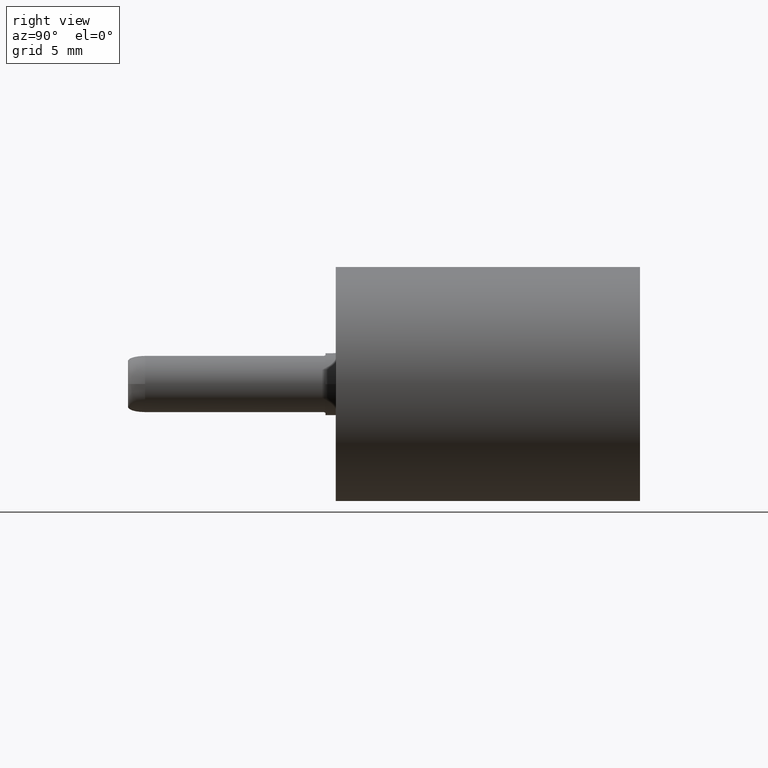
[diagram: clean part render]
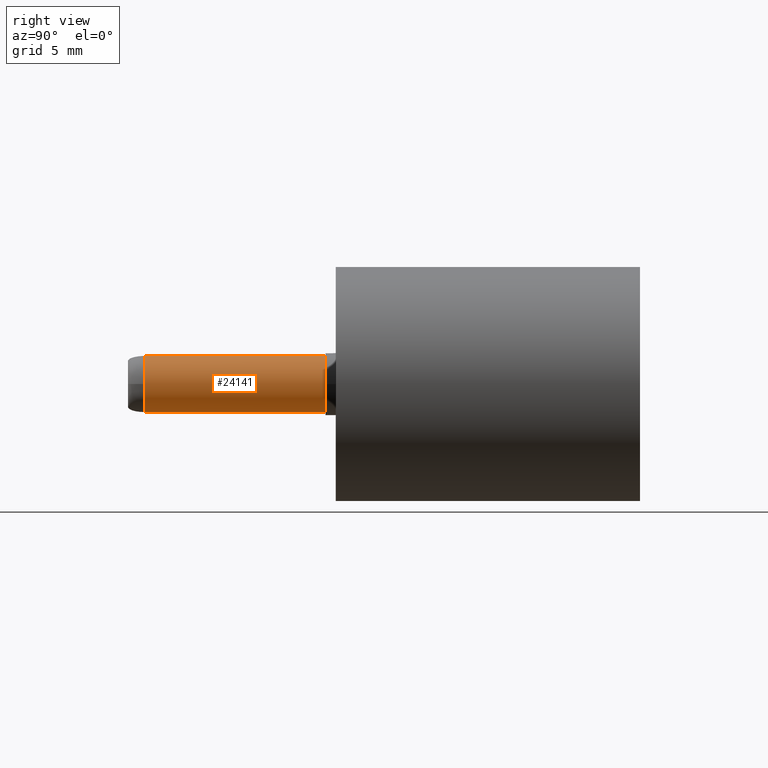
[diagram: same view with one face highlighted and labeled with its STEP entity id]
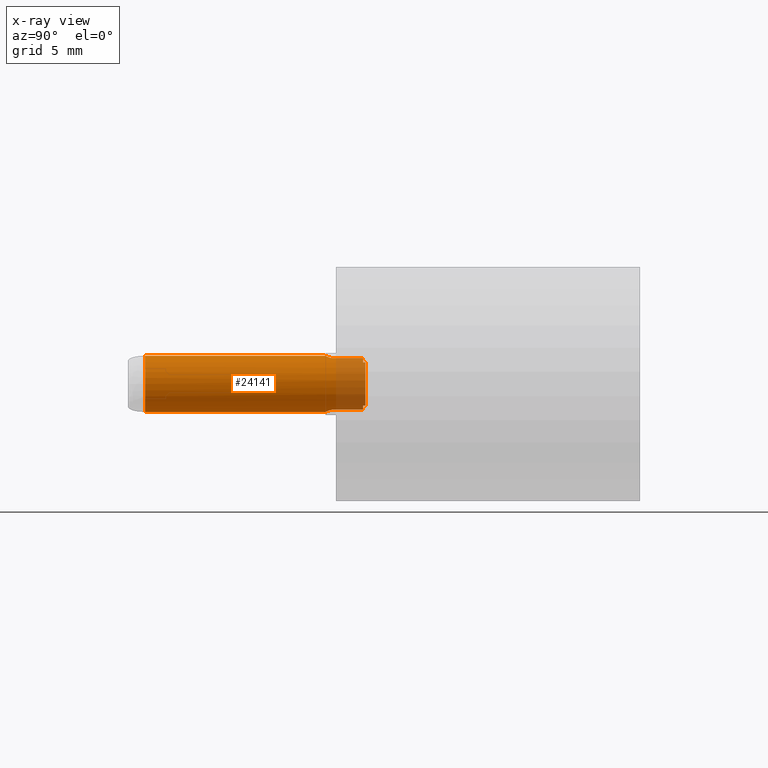
[diagram: x-ray of the same camera — body ghosted, the highlighted face saturated]
A machine part, right view. The second image highlights one B-rep face of the part: STEP entity #24141.
The next image is the same camera in x-ray: the body ghosted, the highlighted face saturated — about 12% of this face is hidden behind the body in this view.
In plain terms, the highlighted cylindrical surface (edge-blend (fillet) strip) has radius 1.2 mm, axis along (0, -1, -0).
Its self-contained STEP definition (entity closure, byte-faithful):
#407=B_SPLINE_CURVE_WITH_KNOTS('',3,(#37984,#37985,#37986,#37987,#37988,
#37989,#37990,#37991,#37992,#37993,#37994,#37995,#37996,#37997),
 .UNSPECIFIED.,.F.,.F.,(4,2,2,2,2,2,4),(1.94104514190108E-9,0.0025253140910005,
0.00510140194742618,0.00920702891639948,0.0163959121293532,0.024338370428822,
0.0331736761186564),.UNSPECIFIED.);
#412=B_SPLINE_CURVE_WITH_KNOTS('',3,(#38093,#38094,#38095,#38096,#38097,
#38098),.UNSPECIFIED.,.F.,.F.,(4,2,4),(-0.0266509401409967,-0.0125554705266207,
0.),.UNSPECIFIED.);
#414=B_SPLINE_CURVE_WITH_KNOTS('',3,(#38229,#38230,#38231,#38232,#38233,
#38234,#38235,#38236,#38237,#38238),.UNSPECIFIED.,.F.,.F.,(4,2,2,2,4),(0.,
0.25,0.5,0.75,1.),.UNSPECIFIED.);
#415=B_SPLINE_CURVE_WITH_KNOTS('',3,(#38240,#38241,#38242,#38243,#38244,
#38245,#38246,#38247,#38248,#38249),.UNSPECIFIED.,.F.,.F.,(4,2,2,2,4),(0.,
0.25,0.5,0.75,1.),.UNSPECIFIED.);
#416=B_SPLINE_CURVE_WITH_KNOTS('',3,(#38253,#38254,#38255,#38256,#38257,
#38258),.UNSPECIFIED.,.F.,.F.,(4,2,4),(-0.0266509401007554,-0.0125554705265609,
0.),.UNSPECIFIED.);
#417=B_SPLINE_CURVE_WITH_KNOTS('',3,(#38260,#38261,#38262,#38263,#38264,
#38265,#38266,#38267,#38268,#38269,#38270,#38271,#38272,#38273),
 .UNSPECIFIED.,.F.,.F.,(4,2,2,2,2,2,4),(-0.0331546385946519,-0.0227858811909074,
-0.0150435629806017,-0.0085681557241552,-0.00454461183909039,-0.00227013898666776,
-1.98706152920725E-9),.UNSPECIFIED.);
#1334=CYLINDRICAL_SURFACE('',#25621,1.19999999999991);
#1565=CIRCLE('',#25613,1.19999999999991);
#1566=CIRCLE('',#25614,1.19999999999991);
#1569=CIRCLE('',#25618,1.19999999999991);
#2559=FACE_OUTER_BOUND('',#3993,.T.);
#3993=EDGE_LOOP('',(#19194,#19195,#19196,#19197,#19198,#19199,#19200,#19201,
#19202,#19203,#19204,#19205,#19206,#19207,#19208));
#6156=LINE('',#38105,#8721);
#6206=LINE('',#38227,#8771);
#6207=LINE('',#38251,#8772);
#6208=LINE('',#38274,#8773);
#6209=LINE('',#38275,#8774);
#6210=LINE('',#38276,#8775);
#8721=VECTOR('',#29252,10.);
#8771=VECTOR('',#29344,1000.);
#8772=VECTOR('',#29345,1000.);
#8773=VECTOR('',#29346,10.);
#8774=VECTOR('',#29347,10.);
#8775=VECTOR('',#29348,10.);
#11034=VERTEX_POINT('',#37982);
#11035=VERTEX_POINT('',#37983);
#11042=VERTEX_POINT('',#38086);
#11043=VERTEX_POINT('',#38104);
#11053=VERTEX_POINT('',#38138);
#11054=VERTEX_POINT('',#38140);
#11055=VERTEX_POINT('',#38142);
#11090=VERTEX_POINT('',#38216);
#11091=VERTEX_POINT('',#38217);
#11094=VERTEX_POINT('',#38226);
#11095=VERTEX_POINT('',#38228);
#11096=VERTEX_POINT('',#38239);
#11097=VERTEX_POINT('',#38250);
#11098=VERTEX_POINT('',#38252);
#11099=VERTEX_POINT('',#38259);
#13891=EDGE_CURVE('',#11034,#11035,#407,.T.);
#13903=EDGE_CURVE('',#11042,#11035,#412,.T.);
#13905=EDGE_CURVE('',#11043,#11034,#6156,.T.);
#13922=EDGE_CURVE('',#11043,#11053,#1565,.T.);
#13924=EDGE_CURVE('',#11054,#11055,#1566,.T.);
#13963=EDGE_CURVE('',#11091,#11090,#1569,.T.);
#13966=EDGE_CURVE('',#11042,#11094,#6206,.T.);
#13967=EDGE_CURVE('',#11094,#11095,#414,.T.);
#13968=EDGE_CURVE('',#11095,#11096,#415,.T.);
#13969=EDGE_CURVE('',#11097,#11096,#6207,.T.);
#13970=EDGE_CURVE('',#11097,#11098,#416,.T.);
#13971=EDGE_CURVE('',#11098,#11099,#417,.T.);
#13972=EDGE_CURVE('',#11055,#11099,#6208,.T.);
#13973=EDGE_CURVE('',#11091,#11054,#6209,.T.);
#13974=EDGE_CURVE('',#11053,#11090,#6210,.T.);
#19194=ORIENTED_EDGE('',*,*,#13903,.F.);
#19195=ORIENTED_EDGE('',*,*,#13966,.T.);
#19196=ORIENTED_EDGE('',*,*,#13967,.T.);
#19197=ORIENTED_EDGE('',*,*,#13968,.T.);
#19198=ORIENTED_EDGE('',*,*,#13969,.F.);
#19199=ORIENTED_EDGE('',*,*,#13970,.T.);
#19200=ORIENTED_EDGE('',*,*,#13971,.T.);
#19201=ORIENTED_EDGE('',*,*,#13972,.F.);
#19202=ORIENTED_EDGE('',*,*,#13924,.F.);
#19203=ORIENTED_EDGE('',*,*,#13973,.F.);
#19204=ORIENTED_EDGE('',*,*,#13963,.T.);
#19205=ORIENTED_EDGE('',*,*,#13974,.F.);
#19206=ORIENTED_EDGE('',*,*,#13922,.F.);
#19207=ORIENTED_EDGE('',*,*,#13905,.T.);
#19208=ORIENTED_EDGE('',*,*,#13891,.T.);
#24141=ADVANCED_FACE('',(#2559),#1334,.T.);
#25613=AXIS2_PLACEMENT_3D('',#38139,#29288,#29289);
#25614=AXIS2_PLACEMENT_3D('',#38143,#29291,#29292);
#25618=AXIS2_PLACEMENT_3D('',#38219,#29335,#29336);
#25621=AXIS2_PLACEMENT_3D('',#38225,#29342,#29343);
#29252=DIRECTION('',(0.,0.,1.));
#29288=DIRECTION('center_axis',(0.,0.,-1.));
#29289=DIRECTION('ref_axis',(1.,0.,0.));
#29291=DIRECTION('center_axis',(0.,0.,-1.));
#29292=DIRECTION('ref_axis',(1.,0.,0.));
#29335=DIRECTION('center_axis',(0.,0.,1.));
#29336=DIRECTION('ref_axis',(1.,0.,0.));
#29342=DIRECTION('center_axis',(0.,0.,1.));
#29343=DIRECTION('ref_axis',(1.,0.,0.));
#29344=DIRECTION('',(0.,0.,1.));
#29345=DIRECTION('',(0.,0.,1.));
#29346=DIRECTION('',(0.,0.,1.));
#29347=DIRECTION('',(0.,0.,1.));
#29348=DIRECTION('',(0.,0.,-1.));
#37982=CARTESIAN_POINT('',(3.39044106317988,1.10605813572542,-8.72244524951929));
#37983=CARTESIAN_POINT('',(3.17658570988163,1.17336004859894,-8.49977193906243));
#37984=CARTESIAN_POINT('Ctrl Pts',(3.39044095623797,1.10605818845898,-8.72244524951597));
#37985=CARTESIAN_POINT('Ctrl Pts',(3.39044117225503,1.10605809755672,-8.71402754186019));
#37986=CARTESIAN_POINT('Ctrl Pts',(3.3897306913939,1.10635789846611,-8.7056824837493));
#37987=CARTESIAN_POINT('Ctrl Pts',(3.38683478439627,1.1075699278312,-8.6889701513575));
#37988=CARTESIAN_POINT('Ctrl Pts',(3.3846446037272,1.10848382457819,-8.6807484273735));
#37989=CARTESIAN_POINT('Ctrl Pts',(3.37723214268304,1.11153513174477,-8.65996896486837));
#37990=CARTESIAN_POINT('Ctrl Pts',(3.37107144501622,1.11403849267101,-8.64798878235368));
#37991=CARTESIAN_POINT('Ctrl Pts',(3.35099203478576,1.12192661665459,-8.61713975181987));
#37992=CARTESIAN_POINT('Ctrl Pts',(3.33464293616445,1.12806716756185,-8.59974066608554));
#37993=CARTESIAN_POINT('Ctrl Pts',(3.29780824181195,1.14080346012937,-8.56769766027853));
#37994=CARTESIAN_POINT('Ctrl Pts',(3.27616885717237,1.14769771862521,-8.55273617230493));
#37995=CARTESIAN_POINT('Ctrl Pts',(3.229418092944,1.16102756681969,-8.52470518922908));
#37996=CARTESIAN_POINT('Ctrl Pts',(3.20327049457383,1.16760590404523,-8.51147672738385));
#37997=CARTESIAN_POINT('Ctrl Pts',(3.17670841426928,1.17330425473829,-8.49951196281792));
#38086=CARTESIAN_POINT('',(2.92499999980712,1.20000000000047,-8.40923008915834));
#38093=CARTESIAN_POINT('Ctrl Pts',(2.92499999980704,1.20000000000039,-8.40923008915859));
#38094=CARTESIAN_POINT('Ctrl Pts',(2.97056683211943,1.20000000000772,-8.42342710478814));
#38095=CARTESIAN_POINT('Ctrl Pts',(3.01584261940598,1.19739344258656,-8.43807405227309));
#38096=CARTESIAN_POINT('Ctrl Pts',(3.09993216927925,1.18785029254913,-8.4680071530596));
#38097=CARTESIAN_POINT('Ctrl Pts',(3.13901317903068,1.18138167567537,-8.48307150687978));
#38098=CARTESIAN_POINT('Ctrl Pts',(3.17643002523629,1.17336394286283,-8.50001993925448));
#38104=CARTESIAN_POINT('',(3.39044117646052,1.10605809578603,-10.04));
#38105=CARTESIAN_POINT('',(3.39044117645638,1.10605809578873,-10.));
#38138=CARTESIAN_POINT('',(3.7,0.916174110090832,-10.04));
#38139=CARTESIAN_POINT('Origin',(2.92500000000004,4.77157376110871E-13,
-10.04));
#38140=CARTESIAN_POINT('',(3.7,-0.916174110089878,-10.04));
#38142=CARTESIAN_POINT('',(3.39044117646052,-1.10605809578603,-10.04));
#38143=CARTESIAN_POINT('Origin',(2.92500000000004,4.77157376110871E-13,
-10.04));
#38216=CARTESIAN_POINT('',(3.7,0.916174110090832,-10.14));
#38217=CARTESIAN_POINT('',(3.7,-0.916174110089878,-10.14));
#38219=CARTESIAN_POINT('Origin',(2.92500000000004,4.77157376110871E-13,
-10.14));
#38225=CARTESIAN_POINT('Origin',(2.92500000000004,4.77157376110871E-13,
-7.7));
#38226=CARTESIAN_POINT('',(2.92499999980712,1.20000000000039,-0.729982964663598));
#38227=CARTESIAN_POINT('',(2.92499999980712,1.20000000000039,-7.7));
#38228=CARTESIAN_POINT('',(4.12499999651021,4.38013670128494E-13,-0.730000000000352));
#38229=CARTESIAN_POINT('Ctrl Pts',(2.92499999980712,1.20000000000039,-0.729982964663598));
#38230=CARTESIAN_POINT('Ctrl Pts',(3.08207963250268,1.20000000002564,-0.729984384274993));
#38231=CARTESIAN_POINT('Ctrl Pts',(3.23909746107538,1.16876721204639,-0.729985803886389));
#38232=CARTESIAN_POINT('Ctrl Pts',(3.5293427763335,1.04854366609223,-0.729988643109183));
#38233=CARTESIAN_POINT('Ctrl Pts',(3.66245606388138,0.95960021094887,-0.729990062720578));
#38234=CARTESIAN_POINT('Ctrl Pts',(3.88460021082988,0.737456064036089,-0.729992901943371));
#38235=CARTESIAN_POINT('Ctrl Pts',(3.97354366599463,0.604342776502508,-0.729994321554768));
#38236=CARTESIAN_POINT('Ctrl Pts',(4.09376721199547,0.314097461263712,-0.72999716077756));
#38237=CARTESIAN_POINT('Ctrl Pts',(4.12499999999995,0.157079632696032,-0.729998580388957));
#38238=CARTESIAN_POINT('Ctrl Pts',(4.12499999999995,4.76863460879075E-13,
-0.730000000000354));
#38239=CARTESIAN_POINT('',(2.925000000197,-1.2,-0.729956581954962));
#38240=CARTESIAN_POINT('Ctrl Pts',(4.12499999999995,4.76863460879075E-13,
-0.730000000000354));
#38241=CARTESIAN_POINT('Ctrl Pts',(4.12499999999996,-0.157079632662588,
-0.729998580388958));
#38242=CARTESIAN_POINT('Ctrl Pts',(4.09376721200854,-0.314097461197843,
-0.729997160777561));
#38243=CARTESIAN_POINT('Ctrl Pts',(3.97354366605616,-0.60434277638637,-0.72999432155477));
#38244=CARTESIAN_POINT('Ctrl Pts',(3.8846002109267,-0.737456063902223,-0.729992901943374));
#38245=CARTESIAN_POINT('Ctrl Pts',(3.66245606406024,-0.959600210805143,
-0.729990062720582));
#38246=CARTESIAN_POINT('Ctrl Pts',(3.52934277655899,-1.04854366595644,-0.729988643109187));
#38247=CARTESIAN_POINT('Ctrl Pts',(3.23909746139019,-1.16876721195647,-0.729985803886395));
#38248=CARTESIAN_POINT('Ctrl Pts',(3.08207963286006,-1.19999999997365,-0.729984384274999));
#38249=CARTESIAN_POINT('Ctrl Pts',(2.925000000197,-1.2,-0.729956581954962));
#38250=CARTESIAN_POINT('',(2.925000000197,-1.19999999999989,-8.4092300892786));
#38251=CARTESIAN_POINT('',(2.925000000197,-1.2,-7.7));
#38252=CARTESIAN_POINT('',(3.176585709881,-1.17336004859785,-8.49977193905952));
#38253=CARTESIAN_POINT('Ctrl Pts',(2.92500000019706,-1.19999999999943,-8.40923008927838));
#38254=CARTESIAN_POINT('Ctrl Pts',(2.97056683237802,-1.19999999999195,-8.42342710487026));
#38255=CARTESIAN_POINT('Ctrl Pts',(3.01584261953331,-1.19739344257118,-8.43807405231645));
#38256=CARTESIAN_POINT('Ctrl Pts',(3.09993216927964,-1.18785029254811,-8.46800715305752));
#38257=CARTESIAN_POINT('Ctrl Pts',(3.13901317903091,-1.18138167567437,-8.48307150687748));
#38258=CARTESIAN_POINT('Ctrl Pts',(3.17643002523642,-1.17336394286185,-8.50001993925192));
#38259=CARTESIAN_POINT('',(3.39044106049774,-1.10605813666982,-8.72244524956029));
#38260=CARTESIAN_POINT('Ctrl Pts',(3.17670841426865,-1.17330425473747,-8.49951196281508));
#38261=CARTESIAN_POINT('Ctrl Pts',(3.2079434727781,-1.16660341221069,-8.5135816485261));
#38262=CARTESIAN_POINT('Ctrl Pts',(3.23868242986931,-1.15865331939548,-8.52942254067704));
#38263=CARTESIAN_POINT('Ctrl Pts',(3.28818415622943,-1.14393385903637,-8.56098628914788));
#38264=CARTESIAN_POINT('Ctrl Pts',(3.30880167241332,-1.13713132591106,-8.57624690888691));
#38265=CARTESIAN_POINT('Ctrl Pts',(3.34214605339648,-1.12527727717344,-8.60777224814738));
#38266=CARTESIAN_POINT('Ctrl Pts',(3.35614150986677,-1.11993558888664,-8.62397348375934));
#38267=CARTESIAN_POINT('Ctrl Pts',(3.37389491733127,-1.11290022589584,-8.65329620903275));
#38268=CARTESIAN_POINT('Ctrl Pts',(3.37951577652804,-1.11060089166893,-8.66524665927407));
#38269=CARTESIAN_POINT('Ctrl Pts',(3.38580961936263,-1.10799844061068,-8.68510434708209));
#38270=CARTESIAN_POINT('Ctrl Pts',(3.38754443667142,-1.10727333228418,-8.69242573801755));
#38271=CARTESIAN_POINT('Ctrl Pts',(3.38986697323045,-1.10630026639842,-8.70736366091304));
#38272=CARTESIAN_POINT('Ctrl Pts',(3.39044114736599,-1.10605810802934,-8.71487812577431));
#38273=CARTESIAN_POINT('Ctrl Pts',(3.39044095101983,-1.10605819065388,-8.72244524955685));
#38274=CARTESIAN_POINT('',(3.39044117646052,-1.10605809578603,-7.7));
#38275=CARTESIAN_POINT('',(3.7,-0.916174110089878,-10.));
#38276=CARTESIAN_POINT('',(3.7,0.916174110090832,-10.));